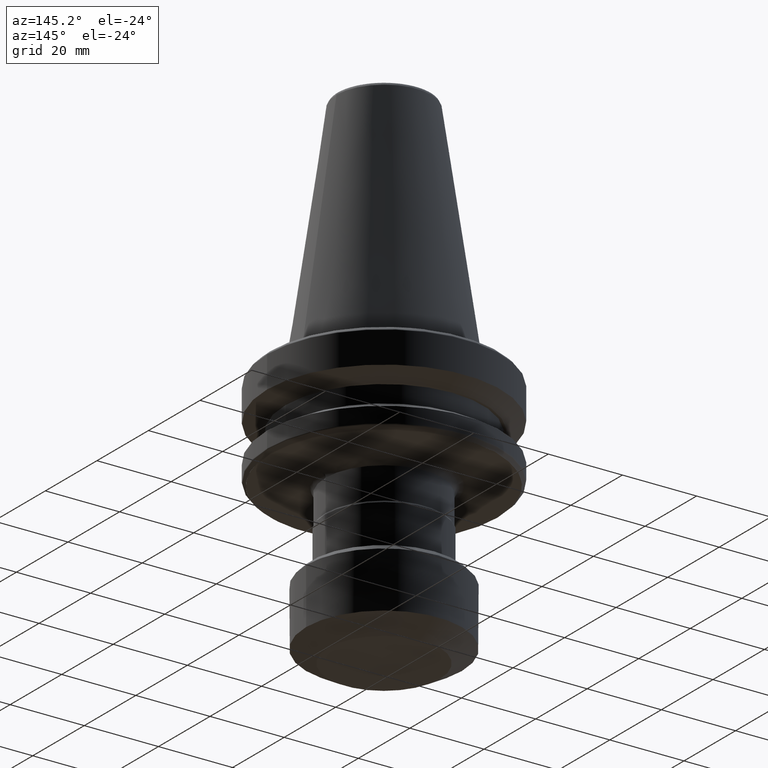
[diagram: clean part render]
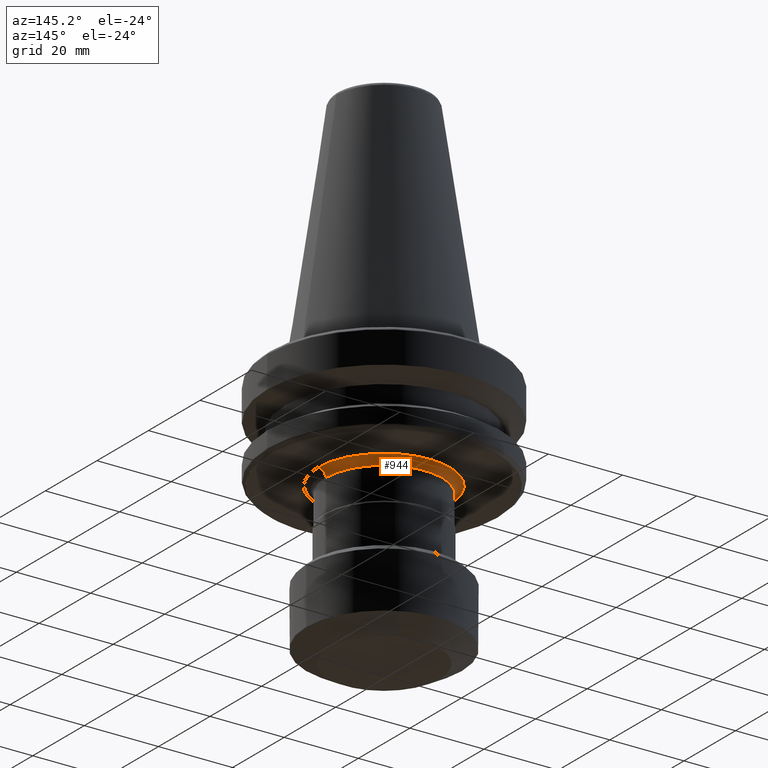
[diagram: same view with one face highlighted and labeled with its STEP entity id]
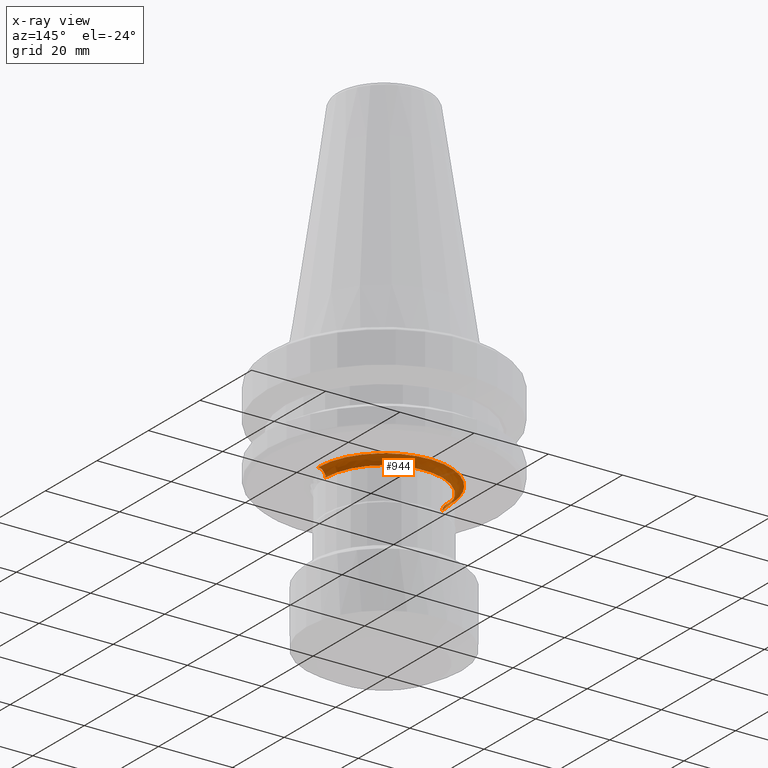
[diagram: x-ray of the same camera — body ghosted, the highlighted face saturated]
A machine part, auxiliary view. The second image highlights one B-rep face of the part: STEP entity #944.
The next image is the same camera in x-ray: the body ghosted, the highlighted face saturated — about 1% of this face is hidden behind the body in this view.
In plain terms, the highlighted face is a freeform B-spline surface patch.
Its self-contained STEP definition (entity closure, byte-faithful):
#7 = CARTESIAN_POINT ( 'NONE',  ( 78.78121441207056800, 86.17853555759712900, 40.06793828204411100 ) ) ;
#15 = CARTESIAN_POINT ( 'NONE',  ( 76.50525361405289000, 91.08407292496423200, 40.06793828204411100 ) ) ;
#26 = CARTESIAN_POINT ( 'NONE',  ( 73.46319942264914000, 94.55731575880112400, 40.06793828204410300 ) ) ;
#33 = CIRCLE ( 'NONE', #480, 15.75000000000000000 ) ;
#40 = CARTESIAN_POINT ( 'NONE',  ( 70.35014764693204400, 96.75395186826820300, 40.06793828204411100 ) ) ;
#52 = CARTESIAN_POINT ( 'NONE',  ( 66.45194519537874100, 98.34692308002802000, 40.06793828204411100 ) ) ;
#60 = CARTESIAN_POINT ( 'NONE',  ( 59.89055094814968100, 98.89038583880321200, 40.06793828204410300 ) ) ;
#73 = CARTESIAN_POINT ( 'NONE',  ( 55.38549549342801000, 97.81165408640987400, 40.06793828204410300 ) ) ;
#81 = CARTESIAN_POINT ( 'NONE',  ( 51.69725915528049100, 95.87569281820462700, 40.06793828204410300 ) ) ;
#90 = CARTESIAN_POINT ( 'NONE',  ( 47.86570436455775700, 92.31655273778403600, 40.06793828204411100 ) ) ;
#94 = CARTESIAN_POINT ( 'NONE',  ( 45.79381812551922300, 89.04508398508224300, 40.06793828204411100 ) ) ;
#106 = CARTESIAN_POINT ( 'NONE',  ( 44.25865579642975000, 84.36324403980202600, 40.06793828204411800 ) ) ;
#187 = EDGE_CURVE ( 'NONE', #2593, #2268, #1239, .T. ) ;
#225 = CARTESIAN_POINT ( 'NONE',  ( 79.33760892467991300, 83.50598529842949300, 40.06793828204411100 ) ) ;
#238 = CARTESIAN_POINT ( 'NONE',  ( 78.63248222190087200, 86.68858764218720100, 40.06793828204411100 ) ) ;
#249 = CARTESIAN_POINT ( 'NONE',  ( 76.08012053717540400, 91.68729778332019000, 40.06793828204410300 ) ) ;
#260 = CARTESIAN_POINT ( 'NONE',  ( 73.42022480549971400, 94.59503317802226300, 40.06793828204411800 ) ) ;
#269 = CARTESIAN_POINT ( 'NONE',  ( 70.16197004720432100, 96.85660023160180300, 40.06793828204411100 ) ) ;
#280 = CARTESIAN_POINT ( 'NONE',  ( 66.19150865777014300, 98.41661638316695400, 40.06793828204411100 ) ) ;
#289 = CARTESIAN_POINT ( 'NONE',  ( 59.15940619771429700, 98.80155614633336800, 40.06793828204410300 ) ) ;
#300 = CARTESIAN_POINT ( 'NONE',  ( 54.48698848609574000, 97.44555067727118600, 40.06793828204409600 ) ) ;
#312 = CARTESIAN_POINT ( 'NONE',  ( 51.35468253796293000, 95.63861286021655400, 40.06793828204411100 ) ) ;
#321 = CARTESIAN_POINT ( 'NONE',  ( 47.61550908646263700, 91.99405696250863700, 40.06793828204412500 ) ) ;
#328 = CARTESIAN_POINT ( 'NONE',  ( 45.55776392070361400, 88.56096433257721400, 40.06793828204410300 ) ) ;
#340 = CARTESIAN_POINT ( 'NONE',  ( 44.16733990430124400, 83.78504758383709800, 40.06793828204412500 ) ) ;
#413 = DIRECTION ( 'NONE',  ( 0.0000000000000000000, 3.304235192336776000E-016, -1.000000000000000000 ) ) ;
#470 = CARTESIAN_POINT ( 'NONE',  ( 79.32959387438049200, 83.56709570029330800, 40.06793828204411100 ) ) ;
#480 = AXIS2_PLACEMENT_3D ( 'NONE', #1744, #413, #1941 ) ;
#483 = CARTESIAN_POINT ( 'NONE',  ( 78.05727068824352000, 88.21439598598928500, 40.06793828204411100 ) ) ;
#495 = CARTESIAN_POINT ( 'NONE',  ( 75.97557534242106700, 91.82890661520289700, 40.06793828204410300 ) ) ;
#505 = CARTESIAN_POINT ( 'NONE',  ( 72.77290042835672100, 95.14161847189882300, 40.06793828204411100 ) ) ;
#515 = CARTESIAN_POINT ( 'NONE',  ( 69.77483718799966500, 97.06326097046732600, 40.06793828204412500 ) ) ;
#527 = CARTESIAN_POINT ( 'NONE',  ( 65.21070675400143600, 98.64819140961262200, 40.06793828204411100 ) ) ;
#534 = CARTESIAN_POINT ( 'NONE',  ( 57.98862405091777100, 98.58752893023917400, 40.06793828204411800 ) ) ;
#544 = CARTESIAN_POINT ( 'NONE',  ( 53.65427226122366700, 97.04051918269074400, 40.06793828204411100 ) ) ;
#546 = FACE_OUTER_BOUND ( 'NONE', #933, .T. ) ;
#553 = CARTESIAN_POINT ( 'NONE',  ( 50.50375292730252900, 94.98326497908773500, 40.06793828204411800 ) ) ;
#563 = CARTESIAN_POINT ( 'NONE',  ( 47.55679978670919200, 91.91646842793029700, 40.06793828204411100 ) ) ;
#575 = CARTESIAN_POINT ( 'NONE',  ( 44.95765797685412900, 87.04477428618689300, 40.06793828204411800 ) ) ;
#591 = CARTESIAN_POINT ( 'NONE',  ( 44.14798746237957500, 83.64686360346698300, 40.06793828204411100 ) ) ;
#634 = CARTESIAN_POINT ( 'NONE',  ( 45.98341380525030800, 81.23534176582239800, 39.23951116004410300 ) ) ;
#720 = CARTESIAN_POINT ( 'NONE',  ( 79.48341381098818200, 81.62970086089816800, 40.06793828204411100 ) ) ;
#732 = CARTESIAN_POINT ( 'NONE',  ( 79.26709413622263900, 84.03395856896871400, 40.06793828204411100 ) ) ;
#741 = CARTESIAN_POINT ( 'NONE',  ( 77.78394258666845900, 88.81492214754723600, 40.06793828204411800 ) ) ;
#751 = CARTESIAN_POINT ( 'NONE',  ( 75.94508771659900500, 91.86977561020759700, 40.06793828204411100 ) ) ;
#760 = CARTESIAN_POINT ( 'NONE',  ( 72.07712853604950000, 95.66039060469913100, 40.06793828204411100 ) ) ;
#772 = CARTESIAN_POINT ( 'NONE',  ( 68.73614029943465200, 97.54727821967716700, 40.06793828204410300 ) ) ;
#783 = CARTESIAN_POINT ( 'NONE',  ( 64.30722939139337800, 98.79870313627544900, 40.06793828204412500 ) ) ;
#795 = CARTESIAN_POINT ( 'NONE',  ( 57.54221614162623400, 98.48366640630887000, 40.06793828204410300 ) ) ;
#805 = CARTESIAN_POINT ( 'NONE',  ( 53.45849899924522900, 96.93853165358247300, 40.06793828204411100 ) ) ;
#812 = CARTESIAN_POINT ( 'NONE',  ( 50.17165316841881400, 94.70349355348005800, 40.06793828204410300 ) ) ;
#816 = CARTESIAN_POINT ( 'NONE',  ( 47.19540768516998200, 91.43469445120571500, 40.06793828204410300 ) ) ;
#825 = CARTESIAN_POINT ( 'NONE',  ( 44.75621248470886100, 86.41647529085265900, 40.06793828204411100 ) ) ;
#836 = CARTESIAN_POINT ( 'NONE',  ( 44.14212969388515300, 83.60375109642605200, 40.06793828204410300 ) ) ;
#881 = CARTESIAN_POINT ( 'NONE',  ( 77.48341380625029700, 81.23534176582239800, 38.06793828309994200 ) ) ;
#930 = CARTESIAN_POINT ( 'NONE',  ( 79.48341381359146900, 81.23534176582239800, 40.06793828204411100 ) ) ;
#933 = EDGE_LOOP ( 'NONE', ( #2586, #2272, #1007, #2567 ) ) ;
#936 =( BOUNDED_CURVE ( )  B_SPLINE_CURVE ( 3, ( #881, #2097, #2458, #1339 ),
 .UNSPECIFIED., .F., .T. ) 
 B_SPLINE_CURVE_WITH_KNOTS ( ( 4, 4 ),
 ( 0.0000000000000000000, 1.000000000000000000 ),
 .UNSPECIFIED. ) 
 CURVE ( )  GEOMETRIC_REPRESENTATION_ITEM ( )  RATIONAL_B_SPLINE_CURVE ( ( 0.9565783022213170100, 0.7697947699670479900, 0.7697947703775331900, 0.9565783034527730600 ) ) 
 REPRESENTATION_ITEM ( '' )  );
#944 = ADVANCED_FACE ( 'NONE', ( #546 ), #1638, .F. ) ;
#969 = CARTESIAN_POINT ( 'NONE',  ( 78.97788103720927200, 85.45189099562850300, 40.06793828204411100 ) ) ;
#980 = CARTESIAN_POINT ( 'NONE',  ( 77.71596214068479500, 88.95679645996894200, 40.06793828204410300 ) ) ;
#989 = CARTESIAN_POINT ( 'NONE',  ( 74.96357915227491700, 93.09745761839164400, 40.06793828204411100 ) ) ;
#995 = VERTEX_POINT ( 'NONE', #1277 ) ;
#1001 = CARTESIAN_POINT ( 'NONE',  ( 71.90814569927950100, 95.77972158056869000, 40.06793828204411800 ) ) ;
#1007 = ORIENTED_EDGE ( 'NONE', *, *, #2510, .F. ) ;
#1013 = CARTESIAN_POINT ( 'NONE',  ( 68.32802293358861300, 97.71506723733074300, 40.06793828204411100 ) ) ;
#1024 = CARTESIAN_POINT ( 'NONE',  ( 63.21006866691808300, 98.93927474447271200, 40.06793828204412500 ) ) ;
#1032 = CARTESIAN_POINT ( 'NONE',  ( 57.01414810609859500, 98.35030153286174900, 40.06793828204411100 ) ) ;
#1041 = CARTESIAN_POINT ( 'NONE',  ( 53.07797492932318300, 96.73578570162477800, 40.06793828204410300 ) ) ;
#1050 = CARTESIAN_POINT ( 'NONE',  ( 50.09339294140556100, 94.63581956084952700, 40.06793828204411100 ) ) ;
#1057 = CARTESIAN_POINT ( 'NONE',  ( 46.23053451860588600, 89.88782783814829700, 40.06793828204411100 ) ) ;
#1067 = CARTESIAN_POINT ( 'NONE',  ( 44.71114267560515300, 86.26574913909429700, 40.06793828204411100 ) ) ;
#1078 = CARTESIAN_POINT ( 'NONE',  ( 45.98341380625029700, 112.7353417658223700, 38.06793828304410700 ) ) ;
#1079 = CARTESIAN_POINT ( 'NONE',  ( 43.98341380151241300, 82.02440128931790800, 40.06793828204411100 ) ) ;
#1081 = CARTESIAN_POINT ( 'NONE',  ( 45.98341380625030400, 81.23534176582238300, 38.06793828304410700 ) ) ;
#1087 = CARTESIAN_POINT ( 'NONE',  ( 77.48341380725031500, 81.23534176582239800, 39.23951116004410300 ) ) ;
#1101 = VERTEX_POINT ( 'NONE', #930 ) ;
#1102 = CARTESIAN_POINT ( 'NONE',  ( 77.48341380725031500, 112.7353417668223900, 39.23951116004410300 ) ) ;
#1107 = CARTESIAN_POINT ( 'NONE',  ( 45.98341380525029400, 112.7353417668223900, 39.23951116004410300 ) ) ;
#1112 = CARTESIAN_POINT ( 'NONE',  ( 45.98341380525030800, 81.23534176582239800, 39.23951116004410300 ) ) ;
#1121 = CARTESIAN_POINT ( 'NONE',  ( 78.31184093525031600, 81.23534176582239800, 40.06793828504411400 ) ) ;
#1125 = CARTESIAN_POINT ( 'NONE',  ( 78.31184093525031600, 114.3921960228223900, 40.06793828504410000 ) ) ;
#1129 = CARTESIAN_POINT ( 'NONE',  ( 45.15498667725030700, 114.3921960228223900, 40.06793828504410000 ) ) ;
#1132 = CARTESIAN_POINT ( 'NONE',  ( 79.48341381125031500, 81.23534176582238300, 40.06793828204411800 ) ) ;
#1165 = CARTESIAN_POINT ( 'NONE',  ( 43.98341380125030800, 116.7353417768223900, 40.06793828204411100 ) ) ;
#1171 = CARTESIAN_POINT ( 'NONE',  ( 43.98341380125030800, 81.23534176582238300, 40.06793828204411800 ) ) ;
#1212 = CARTESIAN_POINT ( 'NONE',  ( 78.82723054176314300, 86.01753589378452600, 40.06793828204411100 ) ) ;
#1223 = CARTESIAN_POINT ( 'NONE',  ( 77.69618356460152600, 88.99760779997362200, 40.06793828204411800 ) ) ;
#1231 = CARTESIAN_POINT ( 'NONE',  ( 73.81009573585571100, 94.24535135773871300, 40.06793828204410300 ) ) ;
#1238 = CARTESIAN_POINT ( 'NONE',  ( 71.55835646753384100, 96.02218979623116000, 40.06793828204411100 ) ) ;
#1239 =( BOUNDED_CURVE ( )  B_SPLINE_CURVE ( 3, ( #2363, #2385, #634, #2041 ),
 .UNSPECIFIED., .F., .F. ) 
 B_SPLINE_CURVE_WITH_KNOTS ( ( 4, 4 ),
 ( 0.0000000000000000000, 1.000000000000000000 ),
 .UNSPECIFIED. ) 
 CURVE ( )  GEOMETRIC_REPRESENTATION_ITEM ( )  RATIONAL_B_SPLINE_CURVE ( ( 0.9565783034527730600, 0.7697947703775331900, 0.7697947699670479900, 0.9565783022213170100 ) ) 
 REPRESENTATION_ITEM ( '' )  );
#1250 = CARTESIAN_POINT ( 'NONE',  ( 67.82699262346575600, 97.91052111659816100, 40.06793828204411100 ) ) ;
#1257 = CARTESIAN_POINT ( 'NONE',  ( 61.36380511507687900, 98.98535322372129000, 40.06793828204413200 ) ) ;
#1263 = CARTESIAN_POINT ( 'NONE',  ( 55.89575154683629400, 97.99964112940061500, 40.06793828204411100 ) ) ;
#1271 = CARTESIAN_POINT ( 'NONE',  ( 52.12480316610444200, 96.16145627526451300, 40.06793828204411100 ) ) ;
#1277 = CARTESIAN_POINT ( 'NONE',  ( 77.48341380625029700, 81.23534176582239800, 38.06793828309994200 ) ) ;
#1278 = CARTESIAN_POINT ( 'NONE',  ( 49.59306197346162300, 94.19924102760923300, 40.06793828204411800 ) ) ;
#1283 = CARTESIAN_POINT ( 'NONE',  ( 77.48341380625029700, 112.7353417658223700, 38.06793828304410700 ) ) ;
#1284 = CARTESIAN_POINT ( 'NONE',  ( 45.88766969071897300, 89.23432793464968400, 40.06793828204411100 ) ) ;
#1294 = CARTESIAN_POINT ( 'NONE',  ( 79.48341381125031500, 116.7353417768223900, 40.06793828204411100 ) ) ;
#1295 = CARTESIAN_POINT ( 'NONE',  ( 44.69731993063596300, 86.21873277231007600, 40.06793828204411100 ) ) ;
#1339 = CARTESIAN_POINT ( 'NONE',  ( 79.48341381359146900, 81.23534176582238300, 40.06793828204411100 ) ) ;
#1397 = CARTESIAN_POINT ( 'NONE',  ( 79.40651023427147900, 82.90649172889220600, 40.06793828204412500 ) ) ;
#1404 = CARTESIAN_POINT ( 'NONE',  ( 78.78896680040743700, 86.15171940470151000, 40.06793828204411100 ) ) ;
#1406 = CARTESIAN_POINT ( 'NONE',  ( 77.48341380625032600, 81.23534176582238300, 38.06793828304410700 ) ) ;
#1407 = CARTESIAN_POINT ( 'NONE',  ( 45.15498667725030700, 81.23534176582239800, 40.06793828504411400 ) ) ;
#1414 = CARTESIAN_POINT ( 'NONE',  ( 77.03712780599319400, 90.25855634384038200, 40.06793828204411100 ) ) ;
#1418 = CARTESIAN_POINT ( 'NONE',  ( 73.50699119434916900, 94.51871709971025800, 40.06793828204410300 ) ) ;
#1426 = CARTESIAN_POINT ( 'NONE',  ( 70.61164682649526000, 96.60710992281802600, 40.06793828204411100 ) ) ;
#1434 = CARTESIAN_POINT ( 'NONE',  ( 66.71279139733114500, 98.27429193611199300, 40.06793828204410300 ) ) ;
#1441 = CARTESIAN_POINT ( 'NONE',  ( 60.25827578558983100, 98.92492463907395000, 40.06793828204411800 ) ) ;
#1449 = CARTESIAN_POINT ( 'NONE',  ( 55.47190508127605600, 97.84449872253276200, 40.06793828204410300 ) ) ;
#1457 = CARTESIAN_POINT ( 'NONE',  ( 51.76810500174912700, 95.92400762495135800, 40.06793828204411800 ) ) ;
#1462 = CARTESIAN_POINT ( 'NONE',  ( 48.20842006288790300, 92.73803089232293900, 40.06793828204411100 ) ) ;
#1470 = CARTESIAN_POINT ( 'NONE',  ( 45.80934527445784700, 89.07669529238327800, 40.06793828204411100 ) ) ;
#1475 = CARTESIAN_POINT ( 'NONE',  ( 44.40555553712980700, 85.12871982229555100, 40.06793828204411800 ) ) ;
#1597 = CARTESIAN_POINT ( 'NONE',  ( 79.34852575555029800, 83.42041144503790000, 40.06793828204411800 ) ) ;
#1605 = CARTESIAN_POINT ( 'NONE',  ( 78.77781792295172600, 86.19024033369841200, 40.06793828204411100 ) ) ;
#1615 = CARTESIAN_POINT ( 'NONE',  ( 76.22432941355573600, 91.48773831410507300, 40.06793828204412500 ) ) ;
#1623 = CARTESIAN_POINT ( 'NONE',  ( 73.43395813457165400, 94.58300499917011500, 40.06793828204412500 ) ) ;
#1634 = CARTESIAN_POINT ( 'NONE',  ( 70.23733937919905700, 96.81569891501378300, 40.06793828204411100 ) ) ;
#1638 =( BOUNDED_SURFACE ( )  B_SPLINE_SURFACE ( 3, 3, ( 
 ( #1171, #1165, #1294, #1132 ),
 ( #1407, #1129, #1125, #1121 ),
 ( #1112, #1107, #1102, #1087 ),
 ( #1081, #1078, #1283, #1406 ) ),
 .UNSPECIFIED., .F., .F., .T. ) 
 B_SPLINE_SURFACE_WITH_KNOTS ( ( 4, 4 ),
 ( 4, 4 ),
 ( 0.06314145499361072100, 0.9368585429999750600 ),
 ( 0.0000000000000000000, 1.000000000000000000 ),
 .UNSPECIFIED. ) 
 GEOMETRIC_REPRESENTATION_ITEM ( )  RATIONAL_B_SPLINE_SURFACE ( (
 ( 0.9565783034527730600, 0.3188594344842570800, 0.3188594344842570800, 0.9565783034527730600),
 ( 0.7697947703959792100, 0.2565982567986600000, 0.2565982567986600000, 0.7697947703959792100),
 ( 0.7697947699670479900, 0.2565982566556829800, 0.2565982566556829800, 0.7697947699670479900),
 ( 0.9565783021659770600, 0.3188594340553260200, 0.3188594340553260200, 0.9565783021659770600) ) ) 
 REPRESENTATION_ITEM ( '' )  SURFACE ( )  );
#1643 = CARTESIAN_POINT ( 'NONE',  ( 66.27761753232620400, 98.39403621963752800, 40.06793828204411800 ) ) ;
#1652 = CARTESIAN_POINT ( 'NONE',  ( 59.70524251235713100, 98.87003613978278300, 40.06793828204411100 ) ) ;
#1656 = CARTESIAN_POINT ( 'NONE',  ( 54.97414365273116500, 97.65179062109035600, 40.06793828204411100 ) ) ;
#1662 = CARTESIAN_POINT ( 'NONE',  ( 51.66064845018544100, 95.85052452087788300, 40.06793828204411100 ) ) ;
#1668 = CARTESIAN_POINT ( 'NONE',  ( 47.69825594147981500, 92.10216385515960300, 40.06793828204411800 ) ) ;
#1679 = CARTESIAN_POINT ( 'NONE',  ( 45.78525117538852400, 89.02757125960749800, 40.06793828204411800 ) ) ;
#1686 = CARTESIAN_POINT ( 'NONE',  ( 44.19598244802058000, 83.97816922335827900, 40.06793828204411100 ) ) ;
#1708 = B_SPLINE_CURVE_WITH_KNOTS ( 'NONE', 3,
 ( #2156, #720, #2514, #1397, #2706, #1597, #225, #1791, #470, #1980, #732, #2161, #969, #2345, #1212, #2526, #1404, #7, #1605, #238, #1798, #483, #1989, #741, #2169, #980, #2352, #1223, #2535, #1414, #15, #1615, #249, #1807, #495, #2001, #751, #2174, #989, #2358, #1231, #2543, #1418, #26, #1623, #260, #1816, #505, #2007, #760, #2182, #1001, #2364, #1238, #2549, #1426, #40, #1634, #269, #1827, #515, #2015, #772, #2194, #1013, #2369, #1250, #2560, #1434, #52, #1643, #280, #1834, #527, #2024, #783, #2203, #1024, #2376, #1257, #2568, #1441, #60, #1652, #289, #1840, #534, #2033, #795, #2212, #1032, #2384, #1263, #2575, #1449, #73, #1656, #300, #1848, #544, #2040, #805, #2217, #1041, #2391, #1271, #2584, #1457, #81, #1662, #312, #1854, #553, #2048, #812, #2226, #1050, #2400, #1278, #2592, #1462, #90, #1668, #321, #1860, #563, #2054, #816, #2232, #1057, #2403, #1284, #2598, #1470, #94, #1679, #328, #1865, #575, #2059, #825, #2238, #1067, #2410, #1295, #2606, #1475, #106, #1686, #340, #1877, #591, #2067, #836, #2247, #1079, #2418 ),
 .UNSPECIFIED., .F., .F.,
 ( 4, 1, 1, 1, 1, 1, 2, 2, 1, 1, 1, 1, 1, 2, 2, 1, 1, 1, 1, 1, 2, 2, 1, 1, 1, 1, 1, 2, 2, 1, 1, 1, 1, 1, 2, 2, 1, 1, 1, 2, 2, 1, 1, 1, 2, 2, 1, 1, 2, 2, 1, 1, 2, 2, 1, 2, 2, 2, 1, 2, 2, 1, 1, 2, 2, 1, 1, 2, 2, 1, 1, 1, 2, 2, 1, 1, 1, 2, 2, 1, 1, 1, 1, 2, 2, 1, 1, 1, 1, 1, 2, 2, 1, 1, 1, 1, 1, 2, 2, 1, 1, 1, 1, 1, 2, 2, 1, 1, 1, 1, 1, 2, 2, 4 ),
 ( 0.0000000000000000000, 0.03124999999999827900, 0.04687499999999746000, 0.05468749999999655800, 0.05859374999999671800, 0.06054687499999625300, 0.06152343749999601700, 0.06249999999999578100, 0.09374999999997546400, 0.1093749999999652100, 0.1171874999999605500, 0.1210937499999577600, 0.1230468749999563500, 0.1240234374999556500, 0.1249999999999549400, 0.1562499999999365200, 0.1718749999999278600, 0.1796874999999233700, 0.1835937499999209000, 0.1855468749999200600, 0.1865234374999198400, 0.1874999999999196200, 0.2187499999998991600, 0.2343749999998894800, 0.2421874999998844300, 0.2460937499998819000, 0.2480468749998809300, 0.2490234374998807600, 0.2499999999998806000, 0.2812499999998751000, 0.2968749999998721000, 0.3046874999998703300, 0.3085937499998692200, 0.3105468749998688800, 0.3115234374998692200, 0.3124999999998695500, 0.3281249999998678800, 0.3359374999998670500, 0.3398437499998663800, 0.3417968749998663300, 0.3437499999998662700, 0.3593749999998660000, 0.3671874999998661100, 0.3710937499998660000, 0.3730468749998656600, 0.3749999999998653300, 0.3906249999998652700, 0.3984374999998650500, 0.4023437499998649400, 0.4062499999998648300, 0.4218749999998653900, 0.4296874999998660000, 0.4335937499998663300, 0.4374999999998666600, 0.4531249999998685500, 0.4609374999998691600, 0.4687499999998697700, 0.4999999999998730500, 0.5156249999998745400, 0.5234374999998751000, 0.5312499999998757700, 0.5468749999998773200, 0.5546874999998779900, 0.5585937499998782100, 0.5624999999998784300, 0.5781249999998794300, 0.5859374999998798700, 0.5898437499998799800, 0.5937499999998802100, 0.6093749999998796500, 0.6171874999998794300, 0.6210937499998792100, 0.6230468749998792100, 0.6249999999998792100, 0.6406249999998804300, 0.6484374999998812100, 0.6523437499998815400, 0.6542968749998817600, 0.6562499999998820900, 0.6718749999998829800, 0.6796874999998834300, 0.6835937499998838700, 0.6855468749998840900, 0.6865234374998840900, 0.6874999999998842000, 0.7187499999998797600, 0.7343749999998775400, 0.7421874999998764300, 0.7460937499998759900, 0.7480468749998759900, 0.7490234374998759900, 0.7499999999998761000, 0.7812499999998648900, 0.7968749999998596700, 0.8046874999998574500, 0.8085937499998563400, 0.8105468749998561200, 0.8115234374998563400, 0.8124999999998566700, 0.8437499999998785400, 0.8593749999998890900, 0.8671874999998943100, 0.8710937499998965300, 0.8730468749998977500, 0.8740234374998983000, 0.8749999999998989700, 0.9062499999999321700, 0.9218749999999487100, 0.9296874999999569200, 0.9335937499999610300, 0.9355468749999631400, 0.9365234374999637000, 0.9374999999999643600, 1.000000000000000000 ),
 .UNSPECIFIED. ) ;
#1744 = CARTESIAN_POINT ( 'NONE',  ( 61.73341380625030400, 81.23534176582239800, 38.06793828304402900 ) ) ;
#1791 = CARTESIAN_POINT ( 'NONE',  ( 79.33281523430943600, 83.54265251219227700, 40.06793828204411100 ) ) ;
#1798 = CARTESIAN_POINT ( 'NONE',  ( 78.39116555266326700, 87.40203328441958800, 40.06793828204411800 ) ) ;
#1807 = CARTESIAN_POINT ( 'NONE',  ( 76.00707940495232200, 91.78650921158890700, 40.06793828204411100 ) ) ;
#1816 = CARTESIAN_POINT ( 'NONE',  ( 73.15539677532970600, 94.82616964867122500, 40.06793828204411800 ) ) ;
#1827 = CARTESIAN_POINT ( 'NONE',  ( 70.12529470956931700, 96.87633716455879100, 40.06793828204411100 ) ) ;
#1834 = CARTESIAN_POINT ( 'NONE',  ( 65.74718825215606400, 98.52947409105841800, 40.06793828204411100 ) ) ;
#1840 = CARTESIAN_POINT ( 'NONE',  ( 58.61659878560667600, 98.71631345578931900, 40.06793828204411800 ) ) ;
#1848 = CARTESIAN_POINT ( 'NONE',  ( 53.92995811553916500, 97.17973078496964900, 40.06793828204411800 ) ) ;
#1854 = CARTESIAN_POINT ( 'NONE',  ( 50.95514634923625200, 95.34504475230036700, 40.06793828204411100 ) ) ;
#1860 = CARTESIAN_POINT ( 'NONE',  ( 47.58025558213851300, 91.94752991179989000, 40.06793828204410300 ) ) ;
#1865 = CARTESIAN_POINT ( 'NONE',  ( 45.25670066700487100, 87.87060260413295500, 40.06793828204411100 ) ) ;
#1877 = CARTESIAN_POINT ( 'NONE',  ( 44.15369216506285700, 83.68834070625176500, 40.06793828204411100 ) ) ;
#1941 = DIRECTION ( 'NONE',  ( 0.0000000000000000000, 1.000000000000000000, 4.405646923115700700E-016 ) ) ;
#1980 = CARTESIAN_POINT ( 'NONE',  ( 79.32818541582562900, 83.57771076577735400, 40.06793828204411100 ) ) ;
#1989 = CARTESIAN_POINT ( 'NONE',  ( 77.87723356845640400, 88.61557969984878000, 40.06793828204411800 ) ) ;
#2001 = CARTESIAN_POINT ( 'NONE',  ( 75.95452802958915600, 91.85714448873898200, 40.06793828204411800 ) ) ;
#2007 = CARTESIAN_POINT ( 'NONE',  ( 72.31156709873333500, 95.49063449451313100, 40.06793828204411100 ) ) ;
#2015 = CARTESIAN_POINT ( 'NONE',  ( 69.30085477806920800, 97.29819870570044300, 40.06793828204411100 ) ) ;
#2024 = CARTESIAN_POINT ( 'NONE',  ( 64.66927973872013500, 98.74184083179342500, 40.06793828204411100 ) ) ;
#2033 = CARTESIAN_POINT ( 'NONE',  ( 57.72062786021604800, 98.52604955073567800, 40.06793828204409600 ) ) ;
#2040 = CARTESIAN_POINT ( 'NONE',  ( 53.53672746600910400, 96.97950671254375300, 40.06793828204411100 ) ) ;
#2041 = CARTESIAN_POINT ( 'NONE',  ( 45.98341380625030400, 81.23534176453024700, 38.06793828309994200 ) ) ;
#2048 = CARTESIAN_POINT ( 'NONE',  ( 50.28173924923086000, 94.79755418065389000, 40.06793828204411100 ) ) ;
#2054 = CARTESIAN_POINT ( 'NONE',  ( 47.54397649362531600, 91.89942449764511400, 40.06793828204411100 ) ) ;
#2059 = CARTESIAN_POINT ( 'NONE',  ( 44.82118607490321000, 86.62675855185693800, 40.06793828204411800 ) ) ;
#2067 = CARTESIAN_POINT ( 'NONE',  ( 44.14421640023934400, 83.61920524647594300, 40.06793828204411100 ) ) ;
#2097 = CARTESIAN_POINT ( 'NONE',  ( 77.48341380725031500, 81.23534176582239800, 39.23951116004410300 ) ) ;
#2156 = CARTESIAN_POINT ( 'NONE',  ( 79.48341381359146900, 81.23534176582239800, 40.06793828204411100 ) ) ;
#2161 = CARTESIAN_POINT ( 'NONE',  ( 79.15354907042694800, 84.69250081692111100, 40.06793828204411100 ) ) ;
#2169 = CARTESIAN_POINT ( 'NONE',  ( 77.73647899030095200, 88.91428101908860500, 40.06793828204411800 ) ) ;
#2174 = CARTESIAN_POINT ( 'NONE',  ( 75.55984880017186400, 92.38345884920623500, 40.06793828204411800 ) ) ;
#2182 = CARTESIAN_POINT ( 'NONE',  ( 71.97584660249815200, 95.73212495882431500, 40.06793828204410300 ) ) ;
#2194 = CARTESIAN_POINT ( 'NONE',  ( 68.49160516565226000, 97.64866633056823300, 40.06793828204409600 ) ) ;
#2203 = CARTESIAN_POINT ( 'NONE',  ( 64.12689600621763500, 98.82419315800638100, 40.06793828204411100 ) ) ;
#2212 = CARTESIAN_POINT ( 'NONE',  ( 57.45169176829194400, 98.46140952271608200, 40.06793828204410300 ) ) ;
#2217 = CARTESIAN_POINT ( 'NONE',  ( 53.41828483982846600, 96.91727157316405800, 40.06793828204410300 ) ) ;
#2226 = CARTESIAN_POINT ( 'NONE',  ( 50.12467072483305900, 94.66292359298621800, 40.06793828204410300 ) ) ;
#2232 = CARTESIAN_POINT ( 'NONE',  ( 46.72252107467203100, 90.73772019873528900, 40.06793828204410300 ) ) ;
#2238 = CARTESIAN_POINT ( 'NONE',  ( 44.72454127980697100, 86.31101481189078600, 40.06793828204411100 ) ) ;
#2247 = CARTESIAN_POINT ( 'NONE',  ( 44.03577368353229100, 82.80979951963817600, 40.06793828204411800 ) ) ;
#2268 = VERTEX_POINT ( 'NONE', #2332 ) ;
#2272 = ORIENTED_EDGE ( 'NONE', *, *, #2501, .F. ) ;
#2305 = EDGE_CURVE ( 'NONE', #1101, #2593, #1708, .T. ) ;
#2332 = CARTESIAN_POINT ( 'NONE',  ( 45.98341380625030400, 81.23534176453024700, 38.06793828309994200 ) ) ;
#2345 = CARTESIAN_POINT ( 'NONE',  ( 78.87924732315310900, 85.82935880733958800, 40.06793828204411100 ) ) ;
#2352 = CARTESIAN_POINT ( 'NONE',  ( 77.70224528353722300, 88.98512521330310700, 40.06793828204411800 ) ) ;
#2358 = CARTESIAN_POINT ( 'NONE',  ( 74.20506749681449300, 93.87239669288281600, 40.06793828204411100 ) ) ;
#2363 = CARTESIAN_POINT ( 'NONE',  ( 43.98341379890913300, 81.23534176582238300, 40.06793828204411100 ) ) ;
#2364 = CARTESIAN_POINT ( 'NONE',  ( 71.87540273819063000, 95.80257740387602900, 40.06793828204410300 ) ) ;
#2369 = CARTESIAN_POINT ( 'NONE',  ( 68.24775495314848700, 97.74697146253294000, 40.06793828204410300 ) ) ;
#2376 = CARTESIAN_POINT ( 'NONE',  ( 62.47263118859715500, 98.98531886573820800, 40.06793828204410300 ) ) ;
#2384 = CARTESIAN_POINT ( 'NONE',  ( 56.49400216996198800, 98.20119842252427100, 40.06793828204409600 ) ) ;
#2385 = CARTESIAN_POINT ( 'NONE',  ( 45.15498667725029900, 81.23534176582238300, 40.06793828504410700 ) ) ;
#2391 = CARTESIAN_POINT ( 'NONE',  ( 52.63187410692376000, 96.48102915865834500, 40.06793828204411800 ) ) ;
#2400 = CARTESIAN_POINT ( 'NONE',  ( 50.07684089370268800, 94.62142282892011700, 40.06793828204411100 ) ) ;
#2403 = CARTESIAN_POINT ( 'NONE',  ( 45.99946986295149300, 89.45369272467857500, 40.06793828204410300 ) ) ;
#2410 = CARTESIAN_POINT ( 'NONE',  ( 44.70224911043227000, 86.23555684063660500, 40.06793828204411100 ) ) ;
#2418 = CARTESIAN_POINT ( 'NONE',  ( 43.98341379890913300, 81.23534176582239800, 40.06793828204411100 ) ) ;
#2458 = CARTESIAN_POINT ( 'NONE',  ( 78.31184093525030200, 81.23534176582238300, 40.06793828504410700 ) ) ;
#2490 = CARTESIAN_POINT ( 'NONE',  ( 43.98341379890913300, 81.23534176582239800, 40.06793828204411100 ) ) ;
#2501 = EDGE_CURVE ( 'NONE', #995, #1101, #936, .T. ) ;
#2510 = EDGE_CURVE ( 'NONE', #2268, #995, #33, .T. ) ;
#2514 = CARTESIAN_POINT ( 'NONE',  ( 79.46377885523068600, 82.21999451857504900, 40.06793828204411100 ) ) ;
#2526 = CARTESIAN_POINT ( 'NONE',  ( 78.80054716997771900, 86.11148523215430800, 40.06793828204410300 ) ) ;
#2535 = CARTESIAN_POINT ( 'NONE',  ( 77.44163561213542800, 89.51979504086176600, 40.06793828204411800 ) ) ;
#2543 = CARTESIAN_POINT ( 'NONE',  ( 73.60868087206920100, 94.42819997206936500, 40.06793828204411800 ) ) ;
#2549 = CARTESIAN_POINT ( 'NONE',  ( 71.12776473836673600, 96.30236401974156000, 40.06793828204411100 ) ) ;
#2560 = CARTESIAN_POINT ( 'NONE',  ( 67.31691548683551200, 98.09108922546218400, 40.06793828204411100 ) ) ;
#2567 = ORIENTED_EDGE ( 'NONE', *, *, #187, .F. ) ;
#2568 = CARTESIAN_POINT ( 'NONE',  ( 60.81033400518337800, 98.96809527624695600, 40.06793828204411100 ) ) ;
#2575 = CARTESIAN_POINT ( 'NONE',  ( 55.64119834457537900, 97.90734436140553500, 40.06793828204411100 ) ) ;
#2584 = CARTESIAN_POINT ( 'NONE',  ( 51.87461270035646500, 95.99608060441778400, 40.06793828204411100 ) ) ;
#2586 = ORIENTED_EDGE ( 'NONE', *, *, #2305, .F. ) ;
#2592 = CARTESIAN_POINT ( 'NONE',  ( 48.92512686824551300, 93.55178875856040600, 40.06793828204412500 ) ) ;
#2593 = VERTEX_POINT ( 'NONE', #2490 ) ;
#2598 = CARTESIAN_POINT ( 'NONE',  ( 45.83270264350139900, 89.12407123131177400, 40.06793828204411800 ) ) ;
#2606 = CARTESIAN_POINT ( 'NONE',  ( 44.56841767581285300, 85.77682960661461200, 40.06793828204411800 ) ) ;
#2706 = CARTESIAN_POINT ( 'NONE',  ( 79.36928563064799400, 83.24919565314100100, 40.06793828204411100 ) ) ;